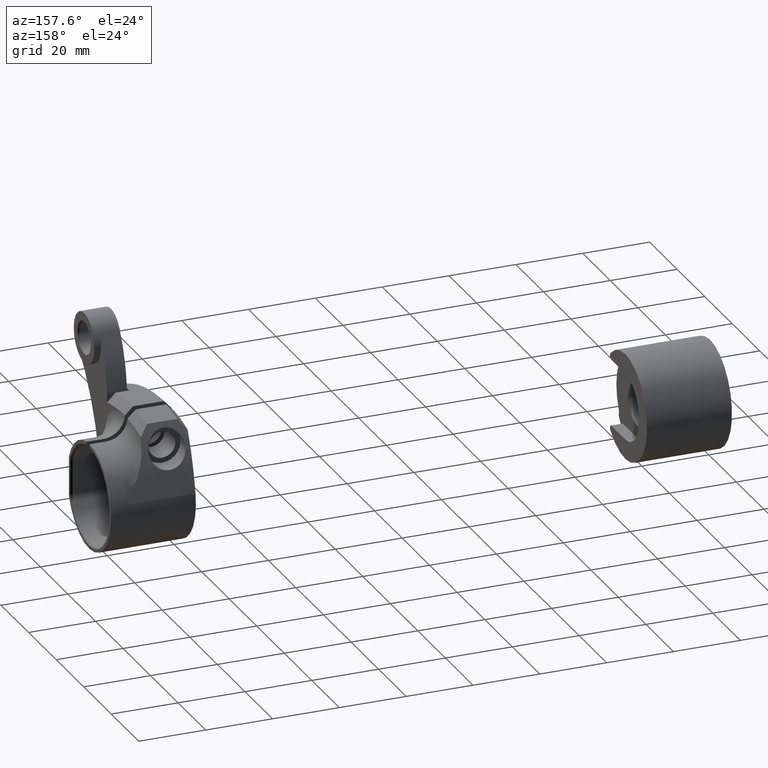
[diagram: clean part render]
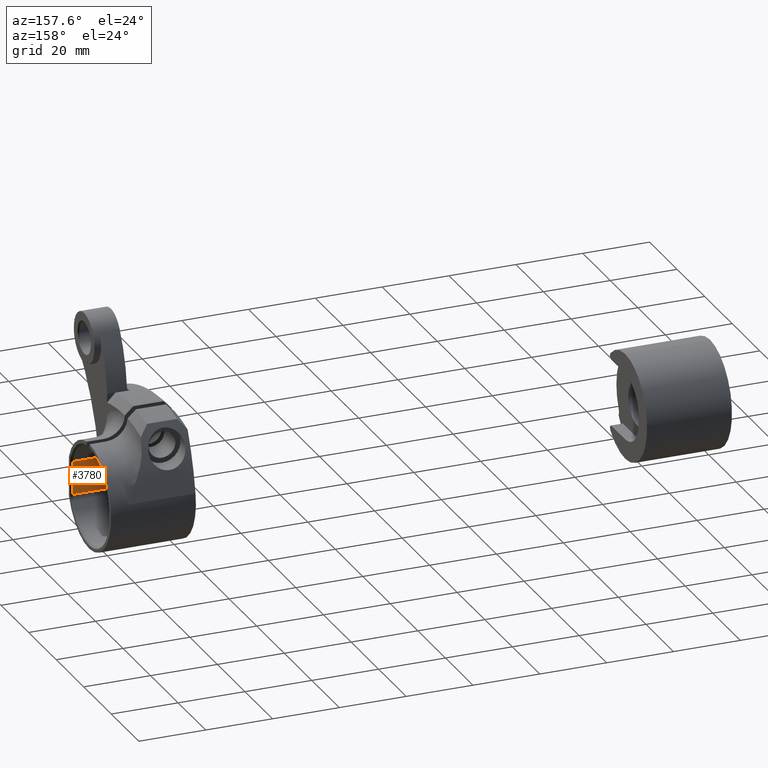
[diagram: same view with one face highlighted and labeled with its STEP entity id]
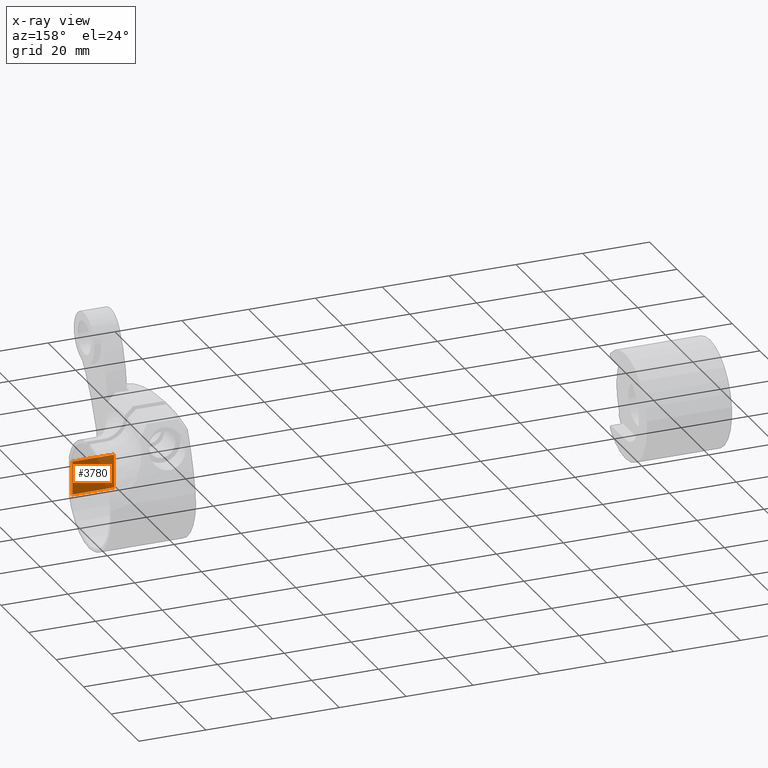
[diagram: x-ray of the same camera — body ghosted, the highlighted face saturated]
A machine part, auxiliary view. The second image highlights one B-rep face of the part: STEP entity #3780.
The next image is the same camera in x-ray: the body ghosted, the highlighted face saturated — about 28% of this face is hidden behind the body in this view.
In plain terms, the highlighted planar face has unit normal (0, -1, -0).
Its self-contained STEP definition (entity closure, byte-faithful):
#61 = DIRECTION ( 'NONE',  ( 0.0000000000000000000, 3.056569106355346800E-016, -1.000000000000000000 ) ) ;
#82 = LINE ( 'NONE', #2045, #640 ) ;
#93 = CARTESIAN_POINT ( 'NONE',  ( -27.26695726559997400, -13.18000000000000000, -4.028558082176346200E-015 ) ) ;
#206 = ORIENTED_EDGE ( 'NONE', *, *, #3835, .T. ) ;
#210 = FACE_OUTER_BOUND ( 'NONE', #3695, .T. ) ;
#306 = AXIS2_PLACEMENT_3D ( 'NONE', #93, #412, #2743 ) ;
#412 = DIRECTION ( 'NONE',  ( 0.0000000000000000000, -1.000000000000000000, -3.056569106355346800E-016 ) ) ;
#523 = VERTEX_POINT ( 'NONE', #3404 ) ;
#640 = VECTOR ( 'NONE', #61, 1000.000000000000000 ) ;
#646 = CARTESIAN_POINT ( 'NONE',  ( 25.39999999999998400, -13.18000000000000100, 4.972132339348999800 ) ) ;
#914 = VERTEX_POINT ( 'NONE', #3096 ) ;
#1016 = VERTEX_POINT ( 'NONE', #3006 ) ;
#1085 = LINE ( 'NONE', #4087, #2744 ) ;
#1460 = EDGE_CURVE ( 'NONE', #1016, #523, #82, .T. ) ;
#1976 = ORIENTED_EDGE ( 'NONE', *, *, #1460, .F. ) ;
#2045 = CARTESIAN_POINT ( 'NONE',  ( 12.49999999999999600, -13.18000000000000000, -4.028558082176346200E-015 ) ) ;
#2062 = VECTOR ( 'NONE', #2957, 1000.000000000000000 ) ;
#2077 = PLANE ( 'NONE',  #306 ) ;
#2335 = ORIENTED_EDGE ( 'NONE', *, *, #2736, .T. ) ;
#2736 = EDGE_CURVE ( 'NONE', #914, #2935, #1085, .T. ) ;
#2743 = DIRECTION ( 'NONE',  ( 0.0000000000000000000, 3.056569106355346800E-016, -1.000000000000000000 ) ) ;
#2744 = VECTOR ( 'NONE', #3763, 1000.000000000000000 ) ;
#2780 = DIRECTION ( 'NONE',  ( -1.000000000000000000, 0.0000000000000000000, 0.0000000000000000000 ) ) ;
#2846 = LINE ( 'NONE', #646, #2062 ) ;
#2935 = VERTEX_POINT ( 'NONE', #2952 ) ;
#2952 = CARTESIAN_POINT ( 'NONE',  ( 24.89999999999995600, -13.17999999999999800, -4.972132339349008700 ) ) ;
#2957 = DIRECTION ( 'NONE',  ( 1.000000000000000000, -0.0000000000000000000, -0.0000000000000000000 ) ) ;
#3006 = CARTESIAN_POINT ( 'NONE',  ( 12.49999999999999600, -13.18000000000000100, 4.972132339348999800 ) ) ;
#3096 = CARTESIAN_POINT ( 'NONE',  ( 24.89999999999995600, -13.18000000000000100, 4.972132339348999800 ) ) ;
#3261 = EDGE_CURVE ( 'NONE', #1016, #914, #2846, .T. ) ;
#3404 = CARTESIAN_POINT ( 'NONE',  ( 12.49999999999999600, -13.17999999999999800, -4.972132339349008700 ) ) ;
#3434 = CARTESIAN_POINT ( 'NONE',  ( 12.49999999999998400, -13.17999999999999800, -4.972132339349008700 ) ) ;
#3524 = VECTOR ( 'NONE', #2780, 1000.000000000000000 ) ;
#3695 = EDGE_LOOP ( 'NONE', ( #3829, #2335, #206, #1976 ) ) ;
#3763 = DIRECTION ( 'NONE',  ( 0.0000000000000000000, 3.056569106355346800E-016, -1.000000000000000000 ) ) ;
#3780 = ADVANCED_FACE ( 'NONE', ( #210 ), #2077, .F. ) ;
#3829 = ORIENTED_EDGE ( 'NONE', *, *, #3261, .T. ) ;
#3835 = EDGE_CURVE ( 'NONE', #2935, #523, #3837, .T. ) ;
#3837 = LINE ( 'NONE', #3434, #3524 ) ;
#4087 = CARTESIAN_POINT ( 'NONE',  ( 24.89999999999995600, -13.17999999999999800, -4.972132339349008700 ) ) ;